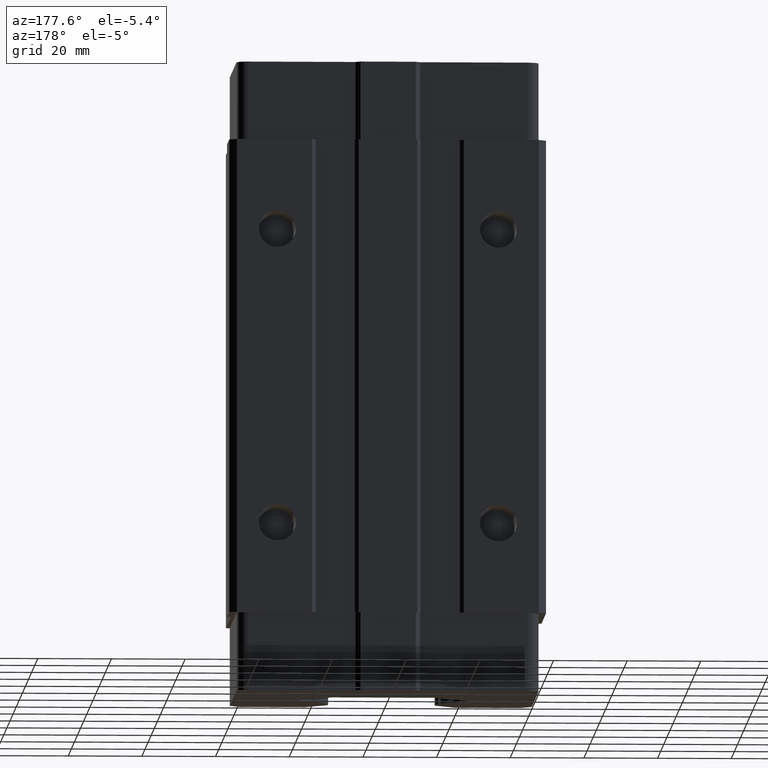
[diagram: clean part render]
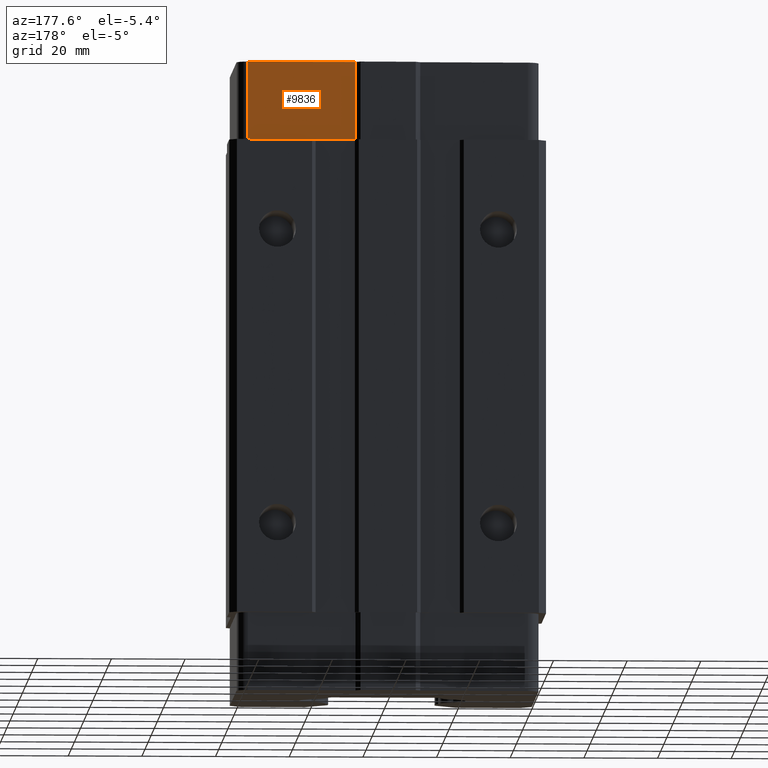
[diagram: same view with one face highlighted and labeled with its STEP entity id]
A machine part, auxiliary view. The second image highlights one B-rep face of the part: STEP entity #9836.
In plain terms, the highlighted planar face has unit normal (0, 1, 0).
Its self-contained STEP definition (entity closure, byte-faithful):
#4193 = CARTESIAN_POINT ( 'NONE',  ( 37.94270697681000100, 20.55541702319000300, 64.40000000000000600 ) ) ;
#4194 = DIRECTION ( 'NONE',  ( -1.000000000000000000, 0.0000000000000000000, 0.0000000000000000000 ) ) ;
#4195 = VECTOR ( 'NONE', #4194, 1000.000000000000000 ) ;
#4196 = CARTESIAN_POINT ( 'NONE',  ( 37.94270697681000100, 20.55541702319000300, 64.40000000000000600 ) ) ;
#4197 = LINE ( 'NONE', #4196, #4195 ) ;
#4272 = CARTESIAN_POINT ( 'NONE',  ( 8.742706976810000100, 20.55541702319000300, 64.40000000000000600 ) ) ;
#6623 = DIRECTION ( 'NONE',  ( 0.0000000000000000000, 0.0000000000000000000, -1.000000000000000000 ) ) ;
#6624 = VECTOR ( 'NONE', #6623, 1000.000000000000000 ) ;
#6625 = CARTESIAN_POINT ( 'NONE',  ( 8.742706976810000100, 20.55541702319000300, 64.40000000000000600 ) ) ;
#6626 = LINE ( 'NONE', #6625, #6624 ) ;
#6774 = PLANE ( 'NONE',  #6835 ) ;
#6779 = FACE_OUTER_BOUND ( 'NONE', #9849, .T. ) ;
#6819 = CARTESIAN_POINT ( 'NONE',  ( 8.742706976810000100, 20.55541702319000300, 85.59999999999999400 ) ) ;
#6832 = DIRECTION ( 'NONE',  ( 0.0000000000000000000, 0.0000000000000000000, 1.000000000000000000 ) ) ;
#6833 = DIRECTION ( 'NONE',  ( 0.0000000000000000000, 1.000000000000000000, 0.0000000000000000000 ) ) ;
#6834 = CARTESIAN_POINT ( 'NONE',  ( 37.94270697681000100, 20.55541702319000300, 64.40000000000000600 ) ) ;
#6835 = AXIS2_PLACEMENT_3D ( 'NONE', #6834, #6833, #6832 ) ;
#6847 = DIRECTION ( 'NONE',  ( -1.000000000000000000, 0.0000000000000000000, 0.0000000000000000000 ) ) ;
#6848 = VECTOR ( 'NONE', #6847, 1000.000000000000000 ) ;
#6849 = CARTESIAN_POINT ( 'NONE',  ( 0.0000000000000000000, 20.55541702319000300, 85.59999999999999400 ) ) ;
#6850 = LINE ( 'NONE', #6849, #6848 ) ;
#6881 = DIRECTION ( 'NONE',  ( 0.0000000000000000000, 0.0000000000000000000, -1.000000000000000000 ) ) ;
#6882 = VECTOR ( 'NONE', #6881, 1000.000000000000000 ) ;
#6883 = CARTESIAN_POINT ( 'NONE',  ( 37.94270697681000100, 20.55541702319000300, 64.40000000000000600 ) ) ;
#6884 = LINE ( 'NONE', #6883, #6882 ) ;
#6885 = CARTESIAN_POINT ( 'NONE',  ( 37.94270697681000100, 20.55541702319000300, 85.59999999999999400 ) ) ;
#9057 = EDGE_CURVE ( 'NONE', #9843, #12309, #6626, .T. ) ;
#9451 = ORIENTED_EDGE ( 'NONE', *, *, #9057, .F. ) ;
#9656 = ORIENTED_EDGE ( 'NONE', *, *, #12286, .T. ) ;
#9788 = ORIENTED_EDGE ( 'NONE', *, *, #9865, .T. ) ;
#9836 = ADVANCED_FACE ( 'NONE', ( #6779 ), #6774, .T. ) ;
#9841 = ORIENTED_EDGE ( 'NONE', *, *, #9848, .F. ) ;
#9843 = VERTEX_POINT ( 'NONE', #6819 ) ;
#9848 = EDGE_CURVE ( 'NONE', #9863, #9843, #6850, .T. ) ;
#9849 = EDGE_LOOP ( 'NONE', ( #9788, #9656, #9451, #9841 ) ) ;
#9863 = VERTEX_POINT ( 'NONE', #6885 ) ;
#9865 = EDGE_CURVE ( 'NONE', #9863, #12287, #6884, .T. ) ;
#12286 = EDGE_CURVE ( 'NONE', #12287, #12309, #4197, .T. ) ;
#12287 = VERTEX_POINT ( 'NONE', #4193 ) ;
#12309 = VERTEX_POINT ( 'NONE', #4272 ) ;